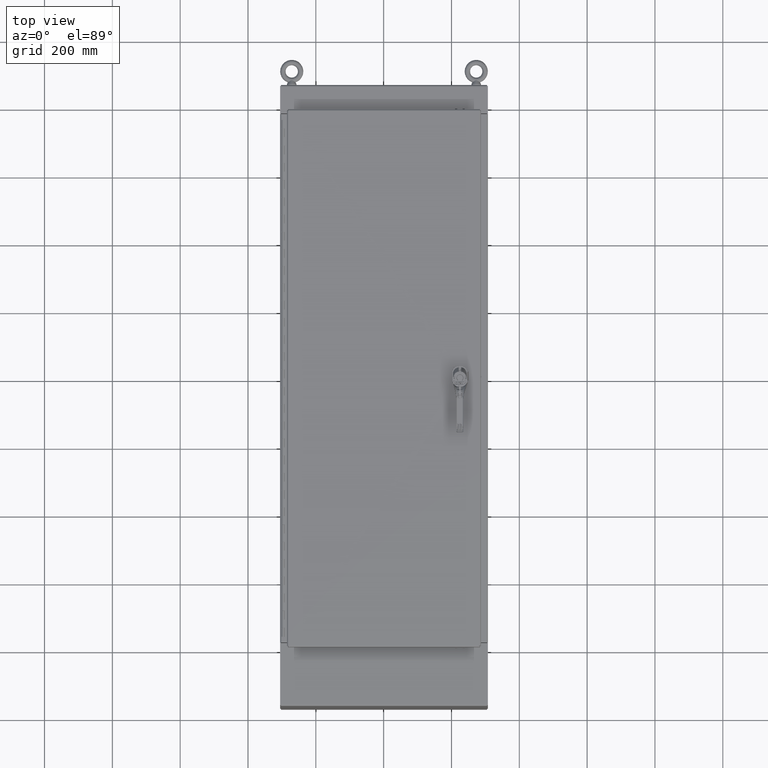
[diagram: clean part render]
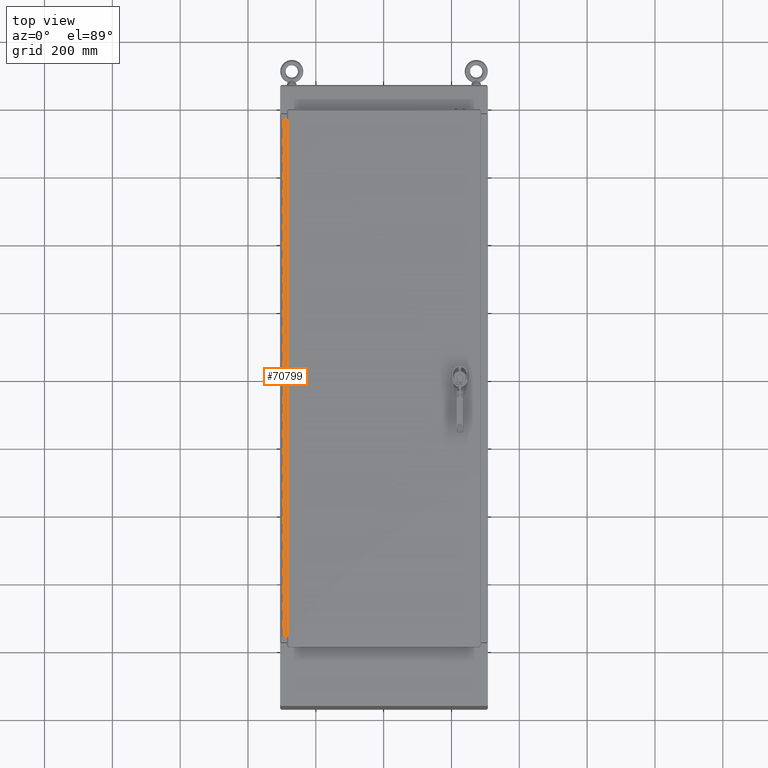
[diagram: same view with one face highlighted and labeled with its STEP entity id]
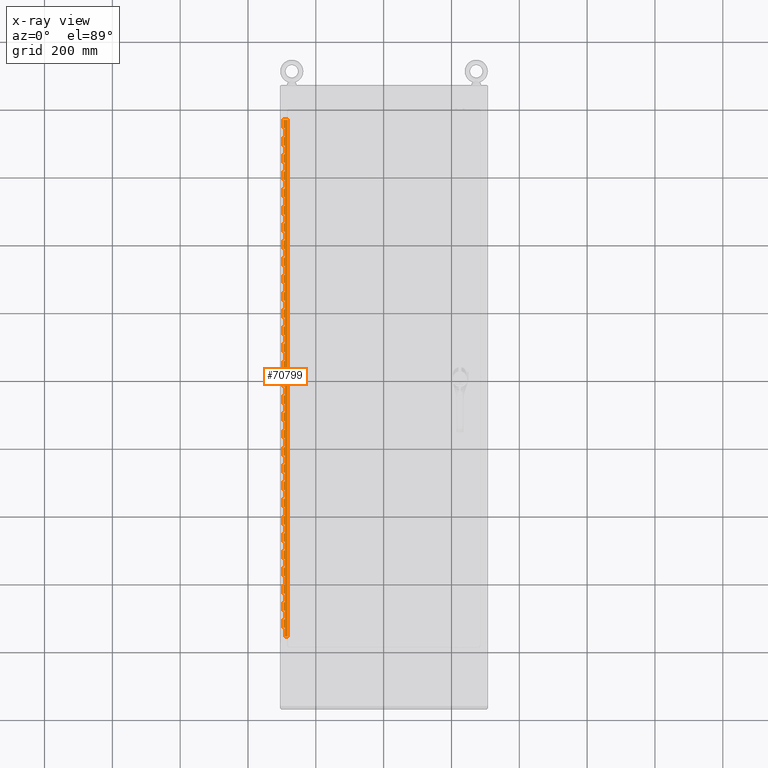
[diagram: x-ray of the same camera — body ghosted, the highlighted face saturated]
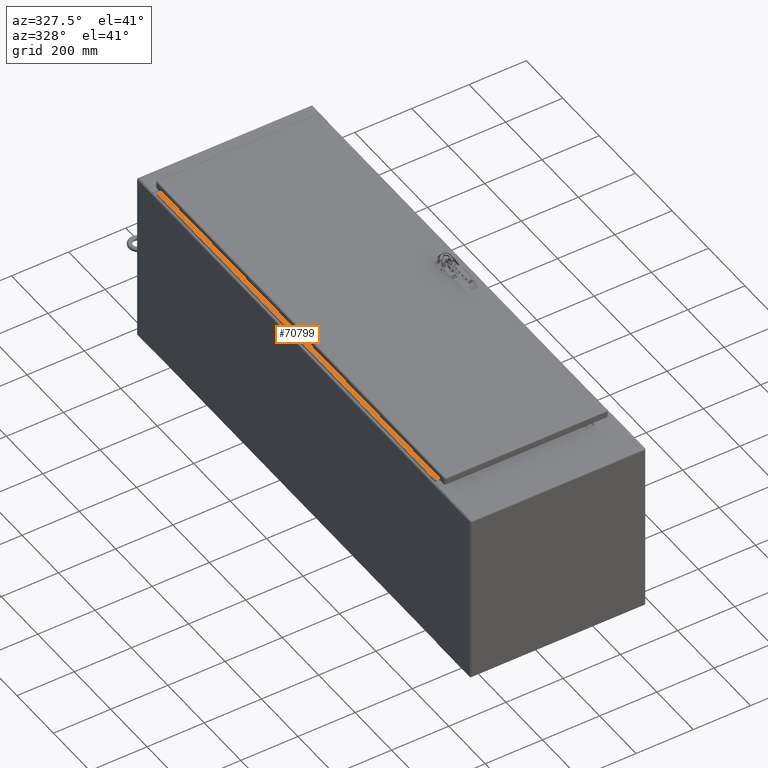
[diagram: same view with one face highlighted and labeled with its STEP entity id]
A machine part, top view. The second image highlights one B-rep face of the part: STEP entity #70799.
The next image is the same camera in x-ray: the body ghosted, the highlighted face saturated — about 0% of this face is hidden behind the body in this view.
A second angle (auxiliary view) of the same face is appended — the face is thin or edge-on in the first view.
In plain terms, the highlighted planar face has unit normal (0.0872, 0, 0.9962).
Its self-contained STEP definition (entity closure, byte-faithful):
#10197=PLANE('',#77788);
#12790=FACE_OUTER_BOUND('',#15876,.T.);
#15876=EDGE_LOOP('',(#62049,#62050,#62051,#62052,#62053,#62054,#62055,#62056,
#62057,#62058,#62059,#62060,#62061,#62062,#62063,#62064,#62065,#62066,#62067,
#62068,#62069,#62070,#62071,#62072,#62073,#62074,#62075,#62076,#62077,#62078,
#62079,#62080,#62081,#62082,#62083,#62084,#62085,#62086,#62087,#62088,#62089,
#62090,#62091,#62092,#62093,#62094,#62095,#62096,#62097,#62098,#62099,#62100,
#62101,#62102,#62103,#62104,#62105,#62106,#62107,#62108,#62109,#62110,#62111,
#62112,#62113,#62114,#62115,#62116,#62117,#62118,#62119,#62120,#62121,#62122,
#62123,#62124,#62125,#62126,#62127,#62128,#62129,#62130,#62131,#62132,#62133,
#62134,#62135,#62136,#62137,#62138,#62139,#62140,#62141,#62142,#62143,#62144,
#62145,#62146,#62147,#62148,#62149,#62150,#62151,#62152,#62153,#62154,#62155,
#62156,#62157,#62158,#62159,#62160,#62161,#62162,#62163,#62164,#62165,#62166,
#62167,#62168,#62169,#62170));
#24318=LINE('',#185659,#29484);
#24323=LINE('',#185671,#29489);
#24327=LINE('',#185682,#29493);
#24328=LINE('',#185688,#29494);
#24333=LINE('',#185700,#29499);
#24337=LINE('',#185711,#29503);
#24338=LINE('',#185717,#29504);
#24343=LINE('',#185729,#29509);
#24347=LINE('',#185740,#29513);
#24348=LINE('',#185746,#29514);
#24353=LINE('',#185758,#29519);
#24357=LINE('',#185769,#29523);
#24358=LINE('',#185775,#29524);
#24363=LINE('',#185787,#29529);
#24367=LINE('',#185798,#29533);
#24368=LINE('',#185804,#29534);
#24373=LINE('',#185816,#29539);
#24377=LINE('',#185827,#29543);
#24378=LINE('',#185833,#29544);
#24383=LINE('',#185845,#29549);
#24387=LINE('',#185856,#29553);
#24388=LINE('',#185862,#29554);
#24393=LINE('',#185874,#29559);
#24397=LINE('',#185885,#29563);
#24398=LINE('',#185891,#29564);
#24403=LINE('',#185903,#29569);
#24407=LINE('',#185914,#29573);
#24408=LINE('',#185920,#29574);
#24413=LINE('',#185932,#29579);
#24417=LINE('',#185943,#29583);
#24418=LINE('',#185949,#29584);
#24423=LINE('',#185961,#29589);
#24427=LINE('',#185972,#29593);
#24428=LINE('',#185978,#29594);
#24433=LINE('',#185990,#29599);
#24437=LINE('',#186001,#29603);
#24438=LINE('',#186007,#29604);
#24443=LINE('',#186019,#29609);
#24447=LINE('',#186030,#29613);
#24448=LINE('',#186036,#29614);
#24453=LINE('',#186048,#29619);
#24457=LINE('',#186059,#29623);
#24458=LINE('',#186065,#29624);
#24463=LINE('',#186077,#29629);
#24467=LINE('',#186088,#29633);
#24468=LINE('',#186094,#29634);
#24473=LINE('',#186106,#29639);
#24477=LINE('',#186117,#29643);
#24478=LINE('',#186123,#29644);
#24483=LINE('',#186135,#29649);
#24487=LINE('',#186146,#29653);
#24488=LINE('',#186152,#29654);
#24493=LINE('',#186164,#29659);
#24497=LINE('',#186175,#29663);
#24498=LINE('',#186181,#29664);
#24503=LINE('',#186193,#29669);
#24507=LINE('',#186204,#29673);
#24508=LINE('',#186210,#29674);
#24513=LINE('',#186222,#29679);
#24517=LINE('',#186233,#29683);
#24518=LINE('',#186239,#29684);
#24523=LINE('',#186251,#29689);
#24527=LINE('',#186262,#29693);
#24528=LINE('',#186268,#29694);
#24533=LINE('',#186280,#29699);
#24537=LINE('',#186291,#29703);
#24538=LINE('',#186297,#29704);
#24543=LINE('',#186309,#29709);
#24547=LINE('',#186320,#29713);
#24548=LINE('',#186326,#29714);
#24553=LINE('',#186338,#29719);
#24557=LINE('',#186349,#29723);
#24558=LINE('',#186355,#29724);
#24563=LINE('',#186367,#29729);
#24567=LINE('',#186378,#29733);
#24568=LINE('',#186384,#29734);
#24573=LINE('',#186396,#29739);
#24577=LINE('',#186407,#29743);
#24578=LINE('',#186413,#29744);
#24583=LINE('',#186425,#29749);
#24587=LINE('',#186436,#29753);
#24588=LINE('',#186442,#29754);
#24593=LINE('',#186454,#29759);
#24597=LINE('',#186465,#29763);
#24598=LINE('',#186471,#29764);
#24603=LINE('',#186483,#29769);
#24607=LINE('',#186494,#29773);
#24608=LINE('',#186496,#29774);
#24609=LINE('',#186497,#29775);
#24610=LINE('',#186498,#29776);
#24611=LINE('',#186499,#29777);
#24612=LINE('',#186500,#29778);
#24613=LINE('',#186501,#29779);
#24614=LINE('',#186502,#29780);
#24615=LINE('',#186503,#29781);
#24616=LINE('',#186504,#29782);
#24617=LINE('',#186505,#29783);
#24618=LINE('',#186506,#29784);
#24619=LINE('',#186507,#29785);
#24620=LINE('',#186508,#29786);
#24621=LINE('',#186509,#29787);
#24622=LINE('',#186510,#29788);
#24623=LINE('',#186511,#29789);
#24624=LINE('',#186512,#29790);
#24625=LINE('',#186513,#29791);
#24626=LINE('',#186514,#29792);
#24627=LINE('',#186515,#29793);
#24628=LINE('',#186516,#29794);
#24629=LINE('',#186517,#29795);
#24630=LINE('',#186518,#29796);
#24631=LINE('',#186519,#29797);
#24632=LINE('',#186520,#29798);
#24633=LINE('',#186521,#29799);
#24634=LINE('',#186522,#29800);
#24635=LINE('',#186523,#29801);
#24636=LINE('',#186525,#29802);
#24637=LINE('',#186527,#29803);
#24638=LINE('',#186529,#29804);
#24639=LINE('',#186531,#29805);
#24640=LINE('',#186533,#29806);
#24641=LINE('',#186535,#29807);
#24642=LINE('',#186536,#29808);
#29484=VECTOR('',#93729,0.393700787401575);
#29489=VECTOR('',#93738,0.393700787401575);
#29493=VECTOR('',#93748,0.393700787401575);
#29494=VECTOR('',#93753,0.393700787401575);
#29499=VECTOR('',#93762,0.393700787401575);
#29503=VECTOR('',#93772,0.393700787401575);
#29504=VECTOR('',#93777,0.393700787401575);
#29509=VECTOR('',#93786,0.393700787401575);
#29513=VECTOR('',#93796,0.393700787401575);
#29514=VECTOR('',#93801,0.393700787401575);
#29519=VECTOR('',#93810,0.393700787401575);
#29523=VECTOR('',#93820,0.393700787401575);
#29524=VECTOR('',#93825,0.393700787401575);
#29529=VECTOR('',#93834,0.393700787401575);
#29533=VECTOR('',#93844,0.393700787401575);
#29534=VECTOR('',#93849,0.393700787401575);
#29539=VECTOR('',#93858,0.393700787401575);
#29543=VECTOR('',#93868,0.393700787401575);
#29544=VECTOR('',#93873,0.393700787401575);
#29549=VECTOR('',#93882,0.393700787401575);
#29553=VECTOR('',#93892,0.393700787401575);
#29554=VECTOR('',#93897,0.393700787401575);
#29559=VECTOR('',#93906,0.393700787401575);
#29563=VECTOR('',#93916,0.393700787401575);
#29564=VECTOR('',#93921,0.393700787401575);
#29569=VECTOR('',#93930,0.393700787401575);
#29573=VECTOR('',#93940,0.393700787401575);
#29574=VECTOR('',#93945,0.393700787401575);
#29579=VECTOR('',#93954,0.393700787401575);
#29583=VECTOR('',#93964,0.393700787401575);
#29584=VECTOR('',#93969,0.393700787401575);
#29589=VECTOR('',#93978,0.393700787401575);
#29593=VECTOR('',#93988,0.393700787401575);
#29594=VECTOR('',#93993,0.393700787401575);
#29599=VECTOR('',#94002,0.393700787401575);
#29603=VECTOR('',#94012,0.393700787401575);
#29604=VECTOR('',#94017,0.393700787401575);
#29609=VECTOR('',#94026,0.393700787401575);
#29613=VECTOR('',#94036,0.393700787401575);
#29614=VECTOR('',#94041,0.393700787401575);
#29619=VECTOR('',#94050,0.393700787401575);
#29623=VECTOR('',#94060,0.393700787401575);
#29624=VECTOR('',#94065,0.393700787401575);
#29629=VECTOR('',#94074,0.393700787401575);
#29633=VECTOR('',#94084,0.393700787401575);
#29634=VECTOR('',#94089,0.393700787401575);
#29639=VECTOR('',#94098,0.393700787401575);
#29643=VECTOR('',#94108,0.393700787401575);
#29644=VECTOR('',#94113,0.393700787401575);
#29649=VECTOR('',#94122,0.393700787401575);
#29653=VECTOR('',#94132,0.393700787401575);
#29654=VECTOR('',#94137,0.393700787401575);
#29659=VECTOR('',#94146,0.393700787401575);
#29663=VECTOR('',#94156,0.393700787401575);
#29664=VECTOR('',#94161,0.393700787401575);
#29669=VECTOR('',#94170,0.393700787401575);
#29673=VECTOR('',#94180,0.393700787401575);
#29674=VECTOR('',#94185,0.393700787401575);
#29679=VECTOR('',#94194,0.393700787401575);
#29683=VECTOR('',#94204,0.393700787401575);
#29684=VECTOR('',#94209,0.393700787401575);
#29689=VECTOR('',#94218,0.393700787401575);
#29693=VECTOR('',#94228,0.393700787401575);
#29694=VECTOR('',#94233,0.393700787401575);
#29699=VECTOR('',#94242,0.393700787401575);
#29703=VECTOR('',#94252,0.393700787401575);
#29704=VECTOR('',#94257,0.393700787401575);
#29709=VECTOR('',#94266,0.393700787401575);
#29713=VECTOR('',#94276,0.393700787401575);
#29714=VECTOR('',#94281,0.393700787401575);
#29719=VECTOR('',#94290,0.393700787401575);
#29723=VECTOR('',#94300,0.393700787401575);
#29724=VECTOR('',#94305,0.393700787401575);
#29729=VECTOR('',#94314,0.393700787401575);
#29733=VECTOR('',#94324,0.393700787401575);
#29734=VECTOR('',#94329,0.393700787401575);
#29739=VECTOR('',#94338,0.393700787401575);
#29743=VECTOR('',#94348,0.393700787401575);
#29744=VECTOR('',#94353,0.393700787401575);
#29749=VECTOR('',#94362,0.393700787401575);
#29753=VECTOR('',#94372,0.393700787401575);
#29754=VECTOR('',#94377,0.393700787401575);
#29759=VECTOR('',#94386,0.393700787401575);
#29763=VECTOR('',#94396,0.393700787401575);
#29764=VECTOR('',#94401,0.393700787401575);
#29769=VECTOR('',#94410,0.393700787401575);
#29773=VECTOR('',#94420,0.393700787401575);
#29774=VECTOR('',#94423,0.393700787401575);
#29775=VECTOR('',#94424,0.393700787401575);
#29776=VECTOR('',#94425,0.393700787401575);
#29777=VECTOR('',#94426,0.393700787401575);
#29778=VECTOR('',#94427,0.393700787401575);
#29779=VECTOR('',#94428,0.393700787401575);
#29780=VECTOR('',#94429,0.393700787401575);
#29781=VECTOR('',#94430,0.393700787401575);
#29782=VECTOR('',#94431,0.393700787401575);
#29783=VECTOR('',#94432,0.393700787401575);
#29784=VECTOR('',#94433,0.393700787401575);
#29785=VECTOR('',#94434,0.393700787401575);
#29786=VECTOR('',#94435,0.393700787401575);
#29787=VECTOR('',#94436,0.393700787401575);
#29788=VECTOR('',#94437,0.393700787401575);
#29789=VECTOR('',#94438,0.393700787401575);
#29790=VECTOR('',#94439,0.393700787401575);
#29791=VECTOR('',#94440,0.393700787401575);
#29792=VECTOR('',#94441,0.393700787401575);
#29793=VECTOR('',#94442,0.393700787401575);
#29794=VECTOR('',#94443,0.393700787401575);
#29795=VECTOR('',#94444,0.393700787401575);
#29796=VECTOR('',#94445,0.393700787401575);
#29797=VECTOR('',#94446,0.393700787401575);
#29798=VECTOR('',#94447,0.393700787401575);
#29799=VECTOR('',#94448,0.393700787401575);
#29800=VECTOR('',#94449,0.393700787401575);
#29801=VECTOR('',#94450,0.393700787401575);
#29802=VECTOR('',#94451,0.393700787401575);
#29803=VECTOR('',#94452,0.393700787401575);
#29804=VECTOR('',#94453,0.393700787401575);
#29805=VECTOR('',#94454,0.393700787401575);
#29806=VECTOR('',#94455,0.393700787401575);
#29807=VECTOR('',#94456,0.393700787401575);
#29808=VECTOR('',#94457,0.393700787401575);
#38575=VERTEX_POINT('',#185655);
#38577=VERTEX_POINT('',#185658);
#38582=VERTEX_POINT('',#185670);
#38584=VERTEX_POINT('',#185675);
#38587=VERTEX_POINT('',#185684);
#38589=VERTEX_POINT('',#185687);
#38594=VERTEX_POINT('',#185699);
#38596=VERTEX_POINT('',#185704);
#38599=VERTEX_POINT('',#185713);
#38601=VERTEX_POINT('',#185716);
#38606=VERTEX_POINT('',#185728);
#38608=VERTEX_POINT('',#185733);
#38611=VERTEX_POINT('',#185742);
#38613=VERTEX_POINT('',#185745);
#38618=VERTEX_POINT('',#185757);
#38620=VERTEX_POINT('',#185762);
#38623=VERTEX_POINT('',#185771);
#38625=VERTEX_POINT('',#185774);
#38630=VERTEX_POINT('',#185786);
#38632=VERTEX_POINT('',#185791);
#38635=VERTEX_POINT('',#185800);
#38637=VERTEX_POINT('',#185803);
#38642=VERTEX_POINT('',#185815);
#38644=VERTEX_POINT('',#185820);
#38647=VERTEX_POINT('',#185829);
#38649=VERTEX_POINT('',#185832);
#38654=VERTEX_POINT('',#185844);
#38656=VERTEX_POINT('',#185849);
#38659=VERTEX_POINT('',#185858);
#38661=VERTEX_POINT('',#185861);
#38666=VERTEX_POINT('',#185873);
#38668=VERTEX_POINT('',#185878);
#38671=VERTEX_POINT('',#185887);
#38673=VERTEX_POINT('',#185890);
#38678=VERTEX_POINT('',#185902);
#38680=VERTEX_POINT('',#185907);
#38683=VERTEX_POINT('',#185916);
#38685=VERTEX_POINT('',#185919);
#38690=VERTEX_POINT('',#185931);
#38692=VERTEX_POINT('',#185936);
#38695=VERTEX_POINT('',#185945);
#38697=VERTEX_POINT('',#185948);
#38702=VERTEX_POINT('',#185960);
#38704=VERTEX_POINT('',#185965);
#38707=VERTEX_POINT('',#185974);
#38709=VERTEX_POINT('',#185977);
#38714=VERTEX_POINT('',#185989);
#38716=VERTEX_POINT('',#185994);
#38719=VERTEX_POINT('',#186003);
#38721=VERTEX_POINT('',#186006);
#38726=VERTEX_POINT('',#186018);
#38728=VERTEX_POINT('',#186023);
#38731=VERTEX_POINT('',#186032);
#38733=VERTEX_POINT('',#186035);
#38738=VERTEX_POINT('',#186047);
#38740=VERTEX_POINT('',#186052);
#38743=VERTEX_POINT('',#186061);
#38745=VERTEX_POINT('',#186064);
#38750=VERTEX_POINT('',#186076);
#38752=VERTEX_POINT('',#186081);
#38755=VERTEX_POINT('',#186090);
#38757=VERTEX_POINT('',#186093);
#38762=VERTEX_POINT('',#186105);
#38764=VERTEX_POINT('',#186110);
#38767=VERTEX_POINT('',#186119);
#38769=VERTEX_POINT('',#186122);
#38774=VERTEX_POINT('',#186134);
#38776=VERTEX_POINT('',#186139);
#38779=VERTEX_POINT('',#186148);
#38781=VERTEX_POINT('',#186151);
#38786=VERTEX_POINT('',#186163);
#38788=VERTEX_POINT('',#186168);
#38791=VERTEX_POINT('',#186177);
#38793=VERTEX_POINT('',#186180);
#38798=VERTEX_POINT('',#186192);
#38800=VERTEX_POINT('',#186197);
#38803=VERTEX_POINT('',#186206);
#38805=VERTEX_POINT('',#186209);
#38810=VERTEX_POINT('',#186221);
#38812=VERTEX_POINT('',#186226);
#38815=VERTEX_POINT('',#186235);
#38817=VERTEX_POINT('',#186238);
#38822=VERTEX_POINT('',#186250);
#38824=VERTEX_POINT('',#186255);
#38827=VERTEX_POINT('',#186264);
#38829=VERTEX_POINT('',#186267);
#38834=VERTEX_POINT('',#186279);
#38836=VERTEX_POINT('',#186284);
#38839=VERTEX_POINT('',#186293);
#38841=VERTEX_POINT('',#186296);
#38846=VERTEX_POINT('',#186308);
#38848=VERTEX_POINT('',#186313);
#38851=VERTEX_POINT('',#186322);
#38853=VERTEX_POINT('',#186325);
#38858=VERTEX_POINT('',#186337);
#38860=VERTEX_POINT('',#186342);
#38863=VERTEX_POINT('',#186351);
#38865=VERTEX_POINT('',#186354);
#38870=VERTEX_POINT('',#186366);
#38872=VERTEX_POINT('',#186371);
#38875=VERTEX_POINT('',#186380);
#38877=VERTEX_POINT('',#186383);
#38882=VERTEX_POINT('',#186395);
#38884=VERTEX_POINT('',#186400);
#38887=VERTEX_POINT('',#186409);
#38889=VERTEX_POINT('',#186412);
#38894=VERTEX_POINT('',#186424);
#38896=VERTEX_POINT('',#186429);
#38899=VERTEX_POINT('',#186438);
#38901=VERTEX_POINT('',#186441);
#38906=VERTEX_POINT('',#186453);
#38908=VERTEX_POINT('',#186458);
#38911=VERTEX_POINT('',#186467);
#38913=VERTEX_POINT('',#186470);
#38918=VERTEX_POINT('',#186482);
#38920=VERTEX_POINT('',#186487);
#38923=VERTEX_POINT('',#186524);
#38924=VERTEX_POINT('',#186526);
#38925=VERTEX_POINT('',#186528);
#38926=VERTEX_POINT('',#186530);
#38927=VERTEX_POINT('',#186532);
#38928=VERTEX_POINT('',#186534);
#48659=EDGE_CURVE('',#38577,#38575,#24318,.T.);
#48665=EDGE_CURVE('',#38582,#38577,#24323,.T.);
#48671=EDGE_CURVE('',#38584,#38582,#24327,.T.);
#48673=EDGE_CURVE('',#38589,#38587,#24328,.T.);
#48679=EDGE_CURVE('',#38594,#38589,#24333,.T.);
#48685=EDGE_CURVE('',#38596,#38594,#24337,.T.);
#48687=EDGE_CURVE('',#38601,#38599,#24338,.T.);
#48693=EDGE_CURVE('',#38606,#38601,#24343,.T.);
#48699=EDGE_CURVE('',#38608,#38606,#24347,.T.);
#48701=EDGE_CURVE('',#38613,#38611,#24348,.T.);
#48707=EDGE_CURVE('',#38618,#38613,#24353,.T.);
#48713=EDGE_CURVE('',#38620,#38618,#24357,.T.);
#48715=EDGE_CURVE('',#38625,#38623,#24358,.T.);
#48721=EDGE_CURVE('',#38630,#38625,#24363,.T.);
#48727=EDGE_CURVE('',#38632,#38630,#24367,.T.);
#48729=EDGE_CURVE('',#38637,#38635,#24368,.T.);
#48735=EDGE_CURVE('',#38642,#38637,#24373,.T.);
#48741=EDGE_CURVE('',#38644,#38642,#24377,.T.);
#48743=EDGE_CURVE('',#38649,#38647,#24378,.T.);
#48749=EDGE_CURVE('',#38654,#38649,#24383,.T.);
#48755=EDGE_CURVE('',#38656,#38654,#24387,.T.);
#48757=EDGE_CURVE('',#38661,#38659,#24388,.T.);
#48763=EDGE_CURVE('',#38666,#38661,#24393,.T.);
#48769=EDGE_CURVE('',#38668,#38666,#24397,.T.);
#48771=EDGE_CURVE('',#38673,#38671,#24398,.T.);
#48777=EDGE_CURVE('',#38678,#38673,#24403,.T.);
#48783=EDGE_CURVE('',#38680,#38678,#24407,.T.);
#48785=EDGE_CURVE('',#38685,#38683,#24408,.T.);
#48791=EDGE_CURVE('',#38690,#38685,#24413,.T.);
#48797=EDGE_CURVE('',#38692,#38690,#24417,.T.);
#48799=EDGE_CURVE('',#38697,#38695,#24418,.T.);
#48805=EDGE_CURVE('',#38702,#38697,#24423,.T.);
#48811=EDGE_CURVE('',#38704,#38702,#24427,.T.);
#48813=EDGE_CURVE('',#38709,#38707,#24428,.T.);
#48819=EDGE_CURVE('',#38714,#38709,#24433,.T.);
#48825=EDGE_CURVE('',#38716,#38714,#24437,.T.);
#48827=EDGE_CURVE('',#38721,#38719,#24438,.T.);
#48833=EDGE_CURVE('',#38726,#38721,#24443,.T.);
#48839=EDGE_CURVE('',#38728,#38726,#24447,.T.);
#48841=EDGE_CURVE('',#38733,#38731,#24448,.T.);
#48847=EDGE_CURVE('',#38738,#38733,#24453,.T.);
#48853=EDGE_CURVE('',#38740,#38738,#24457,.T.);
#48855=EDGE_CURVE('',#38745,#38743,#24458,.T.);
#48861=EDGE_CURVE('',#38750,#38745,#24463,.T.);
#48867=EDGE_CURVE('',#38752,#38750,#24467,.T.);
#48869=EDGE_CURVE('',#38757,#38755,#24468,.T.);
#48875=EDGE_CURVE('',#38762,#38757,#24473,.T.);
#48881=EDGE_CURVE('',#38764,#38762,#24477,.T.);
#48883=EDGE_CURVE('',#38769,#38767,#24478,.T.);
#48889=EDGE_CURVE('',#38774,#38769,#24483,.T.);
#48895=EDGE_CURVE('',#38776,#38774,#24487,.T.);
#48897=EDGE_CURVE('',#38781,#38779,#24488,.T.);
#48903=EDGE_CURVE('',#38786,#38781,#24493,.T.);
#48909=EDGE_CURVE('',#38788,#38786,#24497,.T.);
#48911=EDGE_CURVE('',#38793,#38791,#24498,.T.);
#48917=EDGE_CURVE('',#38798,#38793,#24503,.T.);
#48923=EDGE_CURVE('',#38800,#38798,#24507,.T.);
#48925=EDGE_CURVE('',#38805,#38803,#24508,.T.);
#48931=EDGE_CURVE('',#38810,#38805,#24513,.T.);
#48937=EDGE_CURVE('',#38812,#38810,#24517,.T.);
#48939=EDGE_CURVE('',#38817,#38815,#24518,.T.);
#48945=EDGE_CURVE('',#38822,#38817,#24523,.T.);
#48951=EDGE_CURVE('',#38824,#38822,#24527,.T.);
#48953=EDGE_CURVE('',#38829,#38827,#24528,.T.);
#48959=EDGE_CURVE('',#38834,#38829,#24533,.T.);
#48965=EDGE_CURVE('',#38836,#38834,#24537,.T.);
#48967=EDGE_CURVE('',#38841,#38839,#24538,.T.);
#48973=EDGE_CURVE('',#38846,#38841,#24543,.T.);
#48979=EDGE_CURVE('',#38848,#38846,#24547,.T.);
#48981=EDGE_CURVE('',#38853,#38851,#24548,.T.);
#48987=EDGE_CURVE('',#38858,#38853,#24553,.T.);
#48993=EDGE_CURVE('',#38860,#38858,#24557,.T.);
#48995=EDGE_CURVE('',#38865,#38863,#24558,.T.);
#49001=EDGE_CURVE('',#38870,#38865,#24563,.T.);
#49007=EDGE_CURVE('',#38872,#38870,#24567,.T.);
#49009=EDGE_CURVE('',#38877,#38875,#24568,.T.);
#49015=EDGE_CURVE('',#38882,#38877,#24573,.T.);
#49021=EDGE_CURVE('',#38884,#38882,#24577,.T.);
#49023=EDGE_CURVE('',#38889,#38887,#24578,.T.);
#49029=EDGE_CURVE('',#38894,#38889,#24583,.T.);
#49035=EDGE_CURVE('',#38896,#38894,#24587,.T.);
#49037=EDGE_CURVE('',#38901,#38899,#24588,.T.);
#49043=EDGE_CURVE('',#38906,#38901,#24593,.T.);
#49049=EDGE_CURVE('',#38908,#38906,#24597,.T.);
#49051=EDGE_CURVE('',#38913,#38911,#24598,.T.);
#49057=EDGE_CURVE('',#38918,#38913,#24603,.T.);
#49063=EDGE_CURVE('',#38920,#38918,#24607,.T.);
#49064=EDGE_CURVE('',#38575,#38596,#24608,.T.);
#49065=EDGE_CURVE('',#38587,#38608,#24609,.T.);
#49066=EDGE_CURVE('',#38599,#38620,#24610,.T.);
#49067=EDGE_CURVE('',#38611,#38632,#24611,.T.);
#49068=EDGE_CURVE('',#38623,#38644,#24612,.T.);
#49069=EDGE_CURVE('',#38635,#38656,#24613,.T.);
#49070=EDGE_CURVE('',#38647,#38668,#24614,.T.);
#49071=EDGE_CURVE('',#38659,#38680,#24615,.T.);
#49072=EDGE_CURVE('',#38671,#38692,#24616,.T.);
#49073=EDGE_CURVE('',#38683,#38704,#24617,.T.);
#49074=EDGE_CURVE('',#38695,#38716,#24618,.T.);
#49075=EDGE_CURVE('',#38707,#38728,#24619,.T.);
#49076=EDGE_CURVE('',#38719,#38740,#24620,.T.);
#49077=EDGE_CURVE('',#38731,#38752,#24621,.T.);
#49078=EDGE_CURVE('',#38743,#38764,#24622,.T.);
#49079=EDGE_CURVE('',#38755,#38776,#24623,.T.);
#49080=EDGE_CURVE('',#38767,#38788,#24624,.T.);
#49081=EDGE_CURVE('',#38779,#38800,#24625,.T.);
#49082=EDGE_CURVE('',#38791,#38812,#24626,.T.);
#49083=EDGE_CURVE('',#38803,#38824,#24627,.T.);
#49084=EDGE_CURVE('',#38815,#38836,#24628,.T.);
#49085=EDGE_CURVE('',#38827,#38848,#24629,.T.);
#49086=EDGE_CURVE('',#38839,#38860,#24630,.T.);
#49087=EDGE_CURVE('',#38851,#38872,#24631,.T.);
#49088=EDGE_CURVE('',#38863,#38884,#24632,.T.);
#49089=EDGE_CURVE('',#38875,#38896,#24633,.T.);
#49090=EDGE_CURVE('',#38887,#38908,#24634,.T.);
#49091=EDGE_CURVE('',#38899,#38920,#24635,.T.);
#49092=EDGE_CURVE('',#38911,#38923,#24636,.T.);
#49093=EDGE_CURVE('',#38923,#38924,#24637,.T.);
#49094=EDGE_CURVE('',#38924,#38925,#24638,.T.);
#49095=EDGE_CURVE('',#38925,#38926,#24639,.T.);
#49096=EDGE_CURVE('',#38927,#38926,#24640,.T.);
#49097=EDGE_CURVE('',#38927,#38928,#24641,.T.);
#49098=EDGE_CURVE('',#38928,#38584,#24642,.T.);
#62049=ORIENTED_EDGE('',*,*,#48671,.T.);
#62050=ORIENTED_EDGE('',*,*,#48665,.T.);
#62051=ORIENTED_EDGE('',*,*,#48659,.T.);
#62052=ORIENTED_EDGE('',*,*,#49064,.T.);
#62053=ORIENTED_EDGE('',*,*,#48685,.T.);
#62054=ORIENTED_EDGE('',*,*,#48679,.T.);
#62055=ORIENTED_EDGE('',*,*,#48673,.T.);
#62056=ORIENTED_EDGE('',*,*,#49065,.T.);
#62057=ORIENTED_EDGE('',*,*,#48699,.T.);
#62058=ORIENTED_EDGE('',*,*,#48693,.T.);
#62059=ORIENTED_EDGE('',*,*,#48687,.T.);
#62060=ORIENTED_EDGE('',*,*,#49066,.T.);
#62061=ORIENTED_EDGE('',*,*,#48713,.T.);
#62062=ORIENTED_EDGE('',*,*,#48707,.T.);
#62063=ORIENTED_EDGE('',*,*,#48701,.T.);
#62064=ORIENTED_EDGE('',*,*,#49067,.T.);
#62065=ORIENTED_EDGE('',*,*,#48727,.T.);
#62066=ORIENTED_EDGE('',*,*,#48721,.T.);
#62067=ORIENTED_EDGE('',*,*,#48715,.T.);
#62068=ORIENTED_EDGE('',*,*,#49068,.T.);
#62069=ORIENTED_EDGE('',*,*,#48741,.T.);
#62070=ORIENTED_EDGE('',*,*,#48735,.T.);
#62071=ORIENTED_EDGE('',*,*,#48729,.T.);
#62072=ORIENTED_EDGE('',*,*,#49069,.T.);
#62073=ORIENTED_EDGE('',*,*,#48755,.T.);
#62074=ORIENTED_EDGE('',*,*,#48749,.T.);
#62075=ORIENTED_EDGE('',*,*,#48743,.T.);
#62076=ORIENTED_EDGE('',*,*,#49070,.T.);
#62077=ORIENTED_EDGE('',*,*,#48769,.T.);
#62078=ORIENTED_EDGE('',*,*,#48763,.T.);
#62079=ORIENTED_EDGE('',*,*,#48757,.T.);
#62080=ORIENTED_EDGE('',*,*,#49071,.T.);
#62081=ORIENTED_EDGE('',*,*,#48783,.T.);
#62082=ORIENTED_EDGE('',*,*,#48777,.T.);
#62083=ORIENTED_EDGE('',*,*,#48771,.T.);
#62084=ORIENTED_EDGE('',*,*,#49072,.T.);
#62085=ORIENTED_EDGE('',*,*,#48797,.T.);
#62086=ORIENTED_EDGE('',*,*,#48791,.T.);
#62087=ORIENTED_EDGE('',*,*,#48785,.T.);
#62088=ORIENTED_EDGE('',*,*,#49073,.T.);
#62089=ORIENTED_EDGE('',*,*,#48811,.T.);
#62090=ORIENTED_EDGE('',*,*,#48805,.T.);
#62091=ORIENTED_EDGE('',*,*,#48799,.T.);
#62092=ORIENTED_EDGE('',*,*,#49074,.T.);
#62093=ORIENTED_EDGE('',*,*,#48825,.T.);
#62094=ORIENTED_EDGE('',*,*,#48819,.T.);
#62095=ORIENTED_EDGE('',*,*,#48813,.T.);
#62096=ORIENTED_EDGE('',*,*,#49075,.T.);
#62097=ORIENTED_EDGE('',*,*,#48839,.T.);
#62098=ORIENTED_EDGE('',*,*,#48833,.T.);
#62099=ORIENTED_EDGE('',*,*,#48827,.T.);
#62100=ORIENTED_EDGE('',*,*,#49076,.T.);
#62101=ORIENTED_EDGE('',*,*,#48853,.T.);
#62102=ORIENTED_EDGE('',*,*,#48847,.T.);
#62103=ORIENTED_EDGE('',*,*,#48841,.T.);
#62104=ORIENTED_EDGE('',*,*,#49077,.T.);
#62105=ORIENTED_EDGE('',*,*,#48867,.T.);
#62106=ORIENTED_EDGE('',*,*,#48861,.T.);
#62107=ORIENTED_EDGE('',*,*,#48855,.T.);
#62108=ORIENTED_EDGE('',*,*,#49078,.T.);
#62109=ORIENTED_EDGE('',*,*,#48881,.T.);
#62110=ORIENTED_EDGE('',*,*,#48875,.T.);
#62111=ORIENTED_EDGE('',*,*,#48869,.T.);
#62112=ORIENTED_EDGE('',*,*,#49079,.T.);
#62113=ORIENTED_EDGE('',*,*,#48895,.T.);
#62114=ORIENTED_EDGE('',*,*,#48889,.T.);
#62115=ORIENTED_EDGE('',*,*,#48883,.T.);
#62116=ORIENTED_EDGE('',*,*,#49080,.T.);
#62117=ORIENTED_EDGE('',*,*,#48909,.T.);
#62118=ORIENTED_EDGE('',*,*,#48903,.T.);
#62119=ORIENTED_EDGE('',*,*,#48897,.T.);
#62120=ORIENTED_EDGE('',*,*,#49081,.T.);
#62121=ORIENTED_EDGE('',*,*,#48923,.T.);
#62122=ORIENTED_EDGE('',*,*,#48917,.T.);
#62123=ORIENTED_EDGE('',*,*,#48911,.T.);
#62124=ORIENTED_EDGE('',*,*,#49082,.T.);
#62125=ORIENTED_EDGE('',*,*,#48937,.T.);
#62126=ORIENTED_EDGE('',*,*,#48931,.T.);
#62127=ORIENTED_EDGE('',*,*,#48925,.T.);
#62128=ORIENTED_EDGE('',*,*,#49083,.T.);
#62129=ORIENTED_EDGE('',*,*,#48951,.T.);
#62130=ORIENTED_EDGE('',*,*,#48945,.T.);
#62131=ORIENTED_EDGE('',*,*,#48939,.T.);
#62132=ORIENTED_EDGE('',*,*,#49084,.T.);
#62133=ORIENTED_EDGE('',*,*,#48965,.T.);
#62134=ORIENTED_EDGE('',*,*,#48959,.T.);
#62135=ORIENTED_EDGE('',*,*,#48953,.T.);
#62136=ORIENTED_EDGE('',*,*,#49085,.T.);
#62137=ORIENTED_EDGE('',*,*,#48979,.T.);
#62138=ORIENTED_EDGE('',*,*,#48973,.T.);
#62139=ORIENTED_EDGE('',*,*,#48967,.T.);
#62140=ORIENTED_EDGE('',*,*,#49086,.T.);
#62141=ORIENTED_EDGE('',*,*,#48993,.T.);
#62142=ORIENTED_EDGE('',*,*,#48987,.T.);
#62143=ORIENTED_EDGE('',*,*,#48981,.T.);
#62144=ORIENTED_EDGE('',*,*,#49087,.T.);
#62145=ORIENTED_EDGE('',*,*,#49007,.T.);
#62146=ORIENTED_EDGE('',*,*,#49001,.T.);
#62147=ORIENTED_EDGE('',*,*,#48995,.T.);
#62148=ORIENTED_EDGE('',*,*,#49088,.T.);
#62149=ORIENTED_EDGE('',*,*,#49021,.T.);
#62150=ORIENTED_EDGE('',*,*,#49015,.T.);
#62151=ORIENTED_EDGE('',*,*,#49009,.T.);
#62152=ORIENTED_EDGE('',*,*,#49089,.T.);
#62153=ORIENTED_EDGE('',*,*,#49035,.T.);
#62154=ORIENTED_EDGE('',*,*,#49029,.T.);
#62155=ORIENTED_EDGE('',*,*,#49023,.T.);
#62156=ORIENTED_EDGE('',*,*,#49090,.T.);
#62157=ORIENTED_EDGE('',*,*,#49049,.T.);
#62158=ORIENTED_EDGE('',*,*,#49043,.T.);
#62159=ORIENTED_EDGE('',*,*,#49037,.T.);
#62160=ORIENTED_EDGE('',*,*,#49091,.T.);
#62161=ORIENTED_EDGE('',*,*,#49063,.T.);
#62162=ORIENTED_EDGE('',*,*,#49057,.T.);
#62163=ORIENTED_EDGE('',*,*,#49051,.T.);
#62164=ORIENTED_EDGE('',*,*,#49092,.T.);
#62165=ORIENTED_EDGE('',*,*,#49093,.T.);
#62166=ORIENTED_EDGE('',*,*,#49094,.T.);
#62167=ORIENTED_EDGE('',*,*,#49095,.T.);
#62168=ORIENTED_EDGE('',*,*,#49096,.F.);
#62169=ORIENTED_EDGE('',*,*,#49097,.T.);
#62170=ORIENTED_EDGE('',*,*,#49098,.T.);
#70799=ADVANCED_FACE('',(#12790),#10197,.T.);
#77788=AXIS2_PLACEMENT_3D('',#186495,#94421,#94422);
#93729=DIRECTION('',(1.,1.57313624040339E-16,-2.5910215143748E-29));
#93738=DIRECTION('',(0.,0.,1.));
#93748=DIRECTION('',(-1.,-1.57313624040339E-16,-2.36571529573352E-29));
#93753=DIRECTION('',(1.,1.57313624040339E-16,-2.5910215143748E-29));
#93762=DIRECTION('',(0.,0.,1.));
#93772=DIRECTION('',(-1.,-1.57313624040339E-16,-2.36571529573352E-29));
#93777=DIRECTION('',(1.,1.57313624040339E-16,-2.5910215143748E-29));
#93786=DIRECTION('',(0.,0.,1.));
#93796=DIRECTION('',(-1.,-1.57313624040339E-16,-2.36571529573352E-29));
#93801=DIRECTION('',(1.,1.57313624040339E-16,-2.5910215143748E-29));
#93810=DIRECTION('',(0.,0.,1.));
#93820=DIRECTION('',(-1.,-1.57313624040339E-16,-2.36571529573352E-29));
#93825=DIRECTION('',(1.,1.57313624040339E-16,-2.5910215143748E-29));
#93834=DIRECTION('',(0.,0.,1.));
#93844=DIRECTION('',(-1.,-1.57313624040339E-16,-2.36571529573352E-29));
#93849=DIRECTION('',(1.,1.57313624040339E-16,-2.5910215143748E-29));
#93858=DIRECTION('',(0.,0.,1.));
#93868=DIRECTION('',(-1.,-1.57313624040339E-16,-2.36571529573352E-29));
#93873=DIRECTION('',(1.,1.57313624040339E-16,-2.5910215143748E-29));
#93882=DIRECTION('',(0.,0.,1.));
#93892=DIRECTION('',(-1.,-1.57313624040339E-16,-2.36571529573352E-29));
#93897=DIRECTION('',(1.,1.57313624040339E-16,-2.5910215143748E-29));
#93906=DIRECTION('',(0.,0.,1.));
#93916=DIRECTION('',(-1.,-1.57313624040339E-16,-2.36571529573352E-29));
#93921=DIRECTION('',(1.,1.57313624040339E-16,-2.5910215143748E-29));
#93930=DIRECTION('',(0.,0.,1.));
#93940=DIRECTION('',(-1.,-1.57313624040339E-16,-2.36571529573352E-29));
#93945=DIRECTION('',(1.,1.57313624040339E-16,-2.5910215143748E-29));
#93954=DIRECTION('',(0.,0.,1.));
#93964=DIRECTION('',(-1.,-1.57313624040339E-16,-2.36571529573352E-29));
#93969=DIRECTION('',(1.,1.57313624040339E-16,-2.5910215143748E-29));
#93978=DIRECTION('',(0.,0.,1.));
#93988=DIRECTION('',(-1.,-1.57313624040339E-16,-2.36571529573352E-29));
#93993=DIRECTION('',(1.,1.57313624040339E-16,-2.5910215143748E-29));
#94002=DIRECTION('',(0.,0.,1.));
#94012=DIRECTION('',(-1.,-1.57313624040339E-16,-2.36571529573352E-29));
#94017=DIRECTION('',(1.,1.57313624040339E-16,-2.5910215143748E-29));
#94026=DIRECTION('',(0.,0.,1.));
#94036=DIRECTION('',(-1.,-1.57313624040339E-16,-2.36571529573352E-29));
#94041=DIRECTION('',(1.,1.57313624040339E-16,-2.5910215143748E-29));
#94050=DIRECTION('',(0.,0.,1.));
#94060=DIRECTION('',(-1.,-1.57313624040339E-16,-2.36571529573352E-29));
#94065=DIRECTION('',(1.,1.57313624040339E-16,-2.5910215143748E-29));
#94074=DIRECTION('',(0.,0.,1.));
#94084=DIRECTION('',(-1.,-1.57313624040339E-16,-2.36571529573352E-29));
#94089=DIRECTION('',(1.,1.57313624040339E-16,-2.5910215143748E-29));
#94098=DIRECTION('',(0.,0.,1.));
#94108=DIRECTION('',(-1.,-1.57313624040339E-16,-2.36571529573352E-29));
#94113=DIRECTION('',(1.,1.57313624040339E-16,-2.5910215143748E-29));
#94122=DIRECTION('',(0.,0.,1.));
#94132=DIRECTION('',(-1.,-1.57313624040339E-16,-2.36571529573352E-29));
#94137=DIRECTION('',(1.,1.57313624040339E-16,-2.5910215143748E-29));
#94146=DIRECTION('',(0.,0.,1.));
#94156=DIRECTION('',(-1.,-1.57313624040339E-16,-2.36571529573352E-29));
#94161=DIRECTION('',(1.,1.57313624040339E-16,-2.5910215143748E-29));
#94170=DIRECTION('',(0.,0.,1.));
#94180=DIRECTION('',(-1.,-1.57313624040339E-16,-2.36571529573352E-29));
#94185=DIRECTION('',(1.,1.57313624040339E-16,-2.5910215143748E-29));
#94194=DIRECTION('',(0.,0.,1.));
#94204=DIRECTION('',(-1.,-1.57313624040339E-16,-2.36571529573352E-29));
#94209=DIRECTION('',(1.,1.57313624040339E-16,-2.5910215143748E-29));
#94218=DIRECTION('',(0.,0.,1.));
#94228=DIRECTION('',(-1.,-1.57313624040339E-16,-2.36571529573352E-29));
#94233=DIRECTION('',(1.,1.57313624040339E-16,-2.5910215143748E-29));
#94242=DIRECTION('',(0.,0.,1.));
#94252=DIRECTION('',(-1.,-1.57313624040339E-16,-2.36571529573352E-29));
#94257=DIRECTION('',(1.,1.57313624040339E-16,-2.5910215143748E-29));
#94266=DIRECTION('',(0.,0.,1.));
#94276=DIRECTION('',(-1.,-1.57313624040339E-16,-2.36571529573352E-29));
#94281=DIRECTION('',(1.,1.57313624040339E-16,-2.5910215143748E-29));
#94290=DIRECTION('',(0.,0.,1.));
#94300=DIRECTION('',(-1.,-1.57313624040339E-16,-2.36571529573352E-29));
#94305=DIRECTION('',(1.,1.57313624040339E-16,-2.5910215143748E-29));
#94314=DIRECTION('',(0.,0.,1.));
#94324=DIRECTION('',(-1.,-1.57313624040339E-16,-2.36571529573352E-29));
#94329=DIRECTION('',(1.,1.57313624040339E-16,-2.5910215143748E-29));
#94338=DIRECTION('',(0.,0.,1.));
#94348=DIRECTION('',(-1.,-1.57313624040339E-16,-2.36571529573352E-29));
#94353=DIRECTION('',(1.,1.57313624040339E-16,-2.5910215143748E-29));
#94362=DIRECTION('',(0.,0.,1.));
#94372=DIRECTION('',(-1.,-1.57313624040339E-16,-2.36571529573352E-29));
#94377=DIRECTION('',(1.,1.57313624040339E-16,-2.5910215143748E-29));
#94386=DIRECTION('',(0.,0.,1.));
#94396=DIRECTION('',(-1.,-1.57313624040339E-16,-2.36571529573352E-29));
#94401=DIRECTION('',(1.,1.57313624040339E-16,-2.5910215143748E-29));
#94410=DIRECTION('',(0.,0.,1.));
#94420=DIRECTION('',(-1.,-1.57313624040339E-16,-2.36571529573352E-29));
#94421=DIRECTION('center_axis',(1.57313624040339E-16,-1.,0.));
#94422=DIRECTION('ref_axis',(0.,0.,-1.));
#94423=DIRECTION('',(0.,0.,1.));
#94424=DIRECTION('',(0.,0.,1.));
#94425=DIRECTION('',(0.,0.,1.));
#94426=DIRECTION('',(0.,0.,1.));
#94427=DIRECTION('',(0.,0.,1.));
#94428=DIRECTION('',(0.,0.,1.));
#94429=DIRECTION('',(0.,0.,1.));
#94430=DIRECTION('',(0.,0.,1.));
#94431=DIRECTION('',(0.,0.,1.));
#94432=DIRECTION('',(0.,0.,1.));
#94433=DIRECTION('',(0.,0.,1.));
#94434=DIRECTION('',(0.,0.,1.));
#94435=DIRECTION('',(0.,0.,1.));
#94436=DIRECTION('',(0.,0.,1.));
#94437=DIRECTION('',(0.,0.,1.));
#94438=DIRECTION('',(0.,0.,1.));
#94439=DIRECTION('',(0.,0.,1.));
#94440=DIRECTION('',(0.,0.,1.));
#94441=DIRECTION('',(0.,0.,1.));
#94442=DIRECTION('',(0.,0.,1.));
#94443=DIRECTION('',(0.,0.,1.));
#94444=DIRECTION('',(0.,0.,1.));
#94445=DIRECTION('',(0.,0.,1.));
#94446=DIRECTION('',(0.,0.,1.));
#94447=DIRECTION('',(0.,0.,1.));
#94448=DIRECTION('',(0.,0.,1.));
#94449=DIRECTION('',(0.,0.,1.));
#94450=DIRECTION('',(0.,0.,1.));
#94451=DIRECTION('',(0.,0.,1.));
#94452=DIRECTION('',(-1.,-1.57313624040339E-16,-2.36571529573352E-29));
#94453=DIRECTION('',(0.,0.,1.));
#94454=DIRECTION('',(-1.,-1.57313624040339E-16,0.));
#94455=DIRECTION('',(0.,0.,1.));
#94456=DIRECTION('',(1.,1.57313624040339E-16,0.));
#94457=DIRECTION('',(0.,0.,1.));
#185655=CARTESIAN_POINT('',(0.,-0.16275,2.00000000000001));
#185658=CARTESIAN_POINT('',(-0.18,-0.16275,2.00000000000001));
#185659=CARTESIAN_POINT('',(6.6052870563906E-18,-0.16275,2.00000000000002));
#185670=CARTESIAN_POINT('',(-0.18,-0.16275,0.98000000000002));
#185671=CARTESIAN_POINT('',(-0.18,-0.16275,1.));
#185675=CARTESIAN_POINT('',(0.,-0.16275,0.980000000000009));
#185682=CARTESIAN_POINT('',(6.60528705635309E-18,-0.16275,0.98000000000002));
#185684=CARTESIAN_POINT('',(0.,-0.16275,4.));
#185687=CARTESIAN_POINT('',(-0.18,-0.16275,4.));
#185688=CARTESIAN_POINT('',(6.26735679775047E-18,-0.16275,4.00000000000001));
#185699=CARTESIAN_POINT('',(-0.18,-0.16275,2.98000000000001));
#185700=CARTESIAN_POINT('',(-0.18,-0.16275,2.));
#185704=CARTESIAN_POINT('',(0.,-0.16275,2.98));
#185711=CARTESIAN_POINT('',(6.2673567976634E-18,-0.16275,2.98000000000001));
#185713=CARTESIAN_POINT('',(0.,-0.16275,6.00000000000001));
#185716=CARTESIAN_POINT('',(-0.18,-0.16275,6.00000000000001));
#185717=CARTESIAN_POINT('',(5.92942653911033E-18,-0.16275,6.00000000000002));
#185728=CARTESIAN_POINT('',(-0.18,-0.16275,4.98000000000002));
#185729=CARTESIAN_POINT('',(-0.18,-0.16275,3.));
#185733=CARTESIAN_POINT('',(0.,-0.16275,4.98000000000001));
#185740=CARTESIAN_POINT('',(5.92942653897369E-18,-0.16275,4.98000000000002));
#185742=CARTESIAN_POINT('',(0.,-0.16275,8.));
#185745=CARTESIAN_POINT('',(-0.18,-0.16275,8.));
#185746=CARTESIAN_POINT('',(5.5914962804702E-18,-0.16275,8.00000000000001));
#185757=CARTESIAN_POINT('',(-0.18,-0.16275,6.98000000000001));
#185758=CARTESIAN_POINT('',(-0.18,-0.16275,4.));
#185762=CARTESIAN_POINT('',(0.,-0.16275,6.98));
#185769=CARTESIAN_POINT('',(5.591496280284E-18,-0.16275,6.98000000000001));
#185771=CARTESIAN_POINT('',(0.,-0.16275,10.));
#185774=CARTESIAN_POINT('',(-0.18,-0.16275,10.));
#185775=CARTESIAN_POINT('',(5.25356602183007E-18,-0.16275,10.));
#185786=CARTESIAN_POINT('',(-0.18,-0.16275,8.98000000000001));
#185787=CARTESIAN_POINT('',(-0.18,-0.16275,5.));
#185791=CARTESIAN_POINT('',(0.,-0.16275,8.98));
#185798=CARTESIAN_POINT('',(5.2535660215943E-18,-0.16275,8.98000000000001));
#185800=CARTESIAN_POINT('',(0.,-0.16275,12.));
#185803=CARTESIAN_POINT('',(-0.18,-0.16275,12.));
#185804=CARTESIAN_POINT('',(4.91563576318994E-18,-0.16275,12.));
#185815=CARTESIAN_POINT('',(-0.18,-0.16275,10.98));
#185816=CARTESIAN_POINT('',(-0.18,-0.16275,6.));
#185820=CARTESIAN_POINT('',(0.,-0.16275,10.98));
#185827=CARTESIAN_POINT('',(4.9156357629046E-18,-0.16275,10.98));
#185829=CARTESIAN_POINT('',(0.,-0.16275,14.));
#185832=CARTESIAN_POINT('',(-0.18,-0.16275,14.));
#185833=CARTESIAN_POINT('',(4.5777055045498E-18,-0.16275,14.));
#185844=CARTESIAN_POINT('',(-0.18,-0.16275,12.98));
#185845=CARTESIAN_POINT('',(-0.18,-0.16275,7.));
#185849=CARTESIAN_POINT('',(0.,-0.16275,12.98));
#185856=CARTESIAN_POINT('',(4.5777055042149E-18,-0.16275,12.98));
#185858=CARTESIAN_POINT('',(0.,-0.16275,16.));
#185861=CARTESIAN_POINT('',(-0.18,-0.16275,16.));
#185862=CARTESIAN_POINT('',(4.23977524590968E-18,-0.16275,16.));
#185873=CARTESIAN_POINT('',(-0.18,-0.16275,14.98));
#185874=CARTESIAN_POINT('',(-0.18,-0.16275,8.));
#185878=CARTESIAN_POINT('',(0.,-0.16275,14.98));
#185885=CARTESIAN_POINT('',(4.2397752455252E-18,-0.16275,14.98));
#185887=CARTESIAN_POINT('',(0.,-0.16275,18.));
#185890=CARTESIAN_POINT('',(-0.18,-0.16275,18.));
#185891=CARTESIAN_POINT('',(3.90184498726954E-18,-0.16275,18.));
#185902=CARTESIAN_POINT('',(-0.18,-0.16275,16.98));
#185903=CARTESIAN_POINT('',(-0.18,-0.16275,9.));
#185907=CARTESIAN_POINT('',(0.,-0.16275,16.98));
#185914=CARTESIAN_POINT('',(3.9018449868355E-18,-0.16275,16.98));
#185916=CARTESIAN_POINT('',(0.,-0.16275,20.));
#185919=CARTESIAN_POINT('',(-0.18,-0.16275,20.));
#185920=CARTESIAN_POINT('',(3.56391472862941E-18,-0.16275,20.));
#185931=CARTESIAN_POINT('',(-0.18,-0.16275,18.98));
#185932=CARTESIAN_POINT('',(-0.18,-0.16275,10.));
#185936=CARTESIAN_POINT('',(0.,-0.16275,18.98));
#185943=CARTESIAN_POINT('',(3.5639147281458E-18,-0.16275,18.98));
#185945=CARTESIAN_POINT('',(0.,-0.16275,22.));
#185948=CARTESIAN_POINT('',(-0.18,-0.16275,22.));
#185949=CARTESIAN_POINT('',(3.22598446998928E-18,-0.16275,22.));
#185960=CARTESIAN_POINT('',(-0.18,-0.16275,20.98));
#185961=CARTESIAN_POINT('',(-0.18,-0.16275,11.));
#185965=CARTESIAN_POINT('',(0.,-0.16275,20.98));
#185972=CARTESIAN_POINT('',(3.2259844694561E-18,-0.16275,20.98));
#185974=CARTESIAN_POINT('',(0.,-0.16275,24.));
#185977=CARTESIAN_POINT('',(-0.18,-0.16275,24.));
#185978=CARTESIAN_POINT('',(2.88805421134915E-18,-0.16275,24.));
#185989=CARTESIAN_POINT('',(-0.18,-0.16275,22.98));
#185990=CARTESIAN_POINT('',(-0.18,-0.16275,12.));
#185994=CARTESIAN_POINT('',(0.,-0.16275,22.98));
#186001=CARTESIAN_POINT('',(2.8880542107664E-18,-0.16275,22.98));
#186003=CARTESIAN_POINT('',(0.,-0.16275,26.));
#186006=CARTESIAN_POINT('',(-0.18,-0.16275,26.));
#186007=CARTESIAN_POINT('',(2.55012395270901E-18,-0.16275,26.));
#186018=CARTESIAN_POINT('',(-0.18,-0.16275,24.98));
#186019=CARTESIAN_POINT('',(-0.18,-0.16275,13.));
#186023=CARTESIAN_POINT('',(0.,-0.16275,24.98));
#186030=CARTESIAN_POINT('',(2.5501239520767E-18,-0.16275,24.98));
#186032=CARTESIAN_POINT('',(0.,-0.16275,28.));
#186035=CARTESIAN_POINT('',(-0.18,-0.16275,28.));
#186036=CARTESIAN_POINT('',(2.21219369406888E-18,-0.16275,28.));
#186047=CARTESIAN_POINT('',(-0.18,-0.16275,26.98));
#186048=CARTESIAN_POINT('',(-0.18,-0.16275,14.));
#186052=CARTESIAN_POINT('',(0.,-0.16275,26.98));
#186059=CARTESIAN_POINT('',(2.21219369338701E-18,-0.16275,26.98));
#186061=CARTESIAN_POINT('',(0.,-0.16275,30.));
#186064=CARTESIAN_POINT('',(-0.18,-0.16275,30.));
#186065=CARTESIAN_POINT('',(1.87426343542875E-18,-0.16275,30.));
#186076=CARTESIAN_POINT('',(-0.18,-0.16275,28.98));
#186077=CARTESIAN_POINT('',(-0.18,-0.16275,15.));
#186081=CARTESIAN_POINT('',(0.,-0.16275,28.98));
#186088=CARTESIAN_POINT('',(1.8742634346973E-18,-0.16275,28.98));
#186090=CARTESIAN_POINT('',(0.,-0.16275,32.));
#186093=CARTESIAN_POINT('',(-0.18,-0.16275,32.));
#186094=CARTESIAN_POINT('',(1.53633317678862E-18,-0.16275,32.));
#186105=CARTESIAN_POINT('',(-0.18,-0.16275,30.98));
#186106=CARTESIAN_POINT('',(-0.18,-0.16275,16.));
#186110=CARTESIAN_POINT('',(0.,-0.16275,30.98));
#186117=CARTESIAN_POINT('',(1.53633317600761E-18,-0.16275,30.98));
#186119=CARTESIAN_POINT('',(0.,-0.16275,34.));
#186122=CARTESIAN_POINT('',(-0.18,-0.16275,34.));
#186123=CARTESIAN_POINT('',(1.19840291814848E-18,-0.16275,34.));
#186134=CARTESIAN_POINT('',(-0.18,-0.16275,32.98));
#186135=CARTESIAN_POINT('',(-0.18,-0.16275,17.));
#186139=CARTESIAN_POINT('',(0.,-0.16275,32.98));
#186146=CARTESIAN_POINT('',(1.1984029173179E-18,-0.16275,32.98));
#186148=CARTESIAN_POINT('',(0.,-0.16275,36.));
#186151=CARTESIAN_POINT('',(-0.18,-0.16275,36.));
#186152=CARTESIAN_POINT('',(8.60472659508356E-19,-0.16275,36.));
#186163=CARTESIAN_POINT('',(-0.18,-0.16275,34.98));
#186164=CARTESIAN_POINT('',(-0.18,-0.16275,18.));
#186168=CARTESIAN_POINT('',(0.,-0.16275,34.98));
#186175=CARTESIAN_POINT('',(8.60472658628208E-19,-0.16275,34.98));
#186177=CARTESIAN_POINT('',(0.,-0.16275,38.));
#186180=CARTESIAN_POINT('',(-0.18,-0.16275,38.));
#186181=CARTESIAN_POINT('',(5.2254240086822E-19,-0.16275,38.));
#186192=CARTESIAN_POINT('',(-0.18,-0.16275,36.98));
#186193=CARTESIAN_POINT('',(-0.18,-0.16275,19.));
#186197=CARTESIAN_POINT('',(0.,-0.16275,36.98));
#186204=CARTESIAN_POINT('',(5.22542399938506E-19,-0.16275,36.98));
#186206=CARTESIAN_POINT('',(0.,-0.16275,40.));
#186209=CARTESIAN_POINT('',(-0.18,-0.16275,40.));
#186210=CARTESIAN_POINT('',(1.84612142228092E-19,-0.16275,40.));
#186221=CARTESIAN_POINT('',(-0.18,-0.16275,38.98));
#186222=CARTESIAN_POINT('',(-0.18,-0.16275,20.));
#186226=CARTESIAN_POINT('',(0.,-0.16275,38.98));
#186233=CARTESIAN_POINT('',(1.84612141248809E-19,-0.16275,38.98));
#186235=CARTESIAN_POINT('',(0.,-0.16275,42.));
#186238=CARTESIAN_POINT('',(-0.18,-0.16275,42.));
#186239=CARTESIAN_POINT('',(-1.53318116412042E-19,-0.16275,42.));
#186250=CARTESIAN_POINT('',(-0.18,-0.16275,40.98));
#186251=CARTESIAN_POINT('',(-0.18,-0.16275,21.));
#186255=CARTESIAN_POINT('',(0.,-0.16275,40.98));
#186262=CARTESIAN_POINT('',(-1.53318117440892E-19,-0.16275,40.98));
#186264=CARTESIAN_POINT('',(0.,-0.16275,44.));
#186267=CARTESIAN_POINT('',(-0.18,-0.16275,44.));
#186268=CARTESIAN_POINT('',(-4.91248375052173E-19,-0.16275,44.));
#186279=CARTESIAN_POINT('',(-0.18,-0.16275,42.98));
#186280=CARTESIAN_POINT('',(-0.18,-0.16275,22.));
#186284=CARTESIAN_POINT('',(0.,-0.16275,42.98));
#186291=CARTESIAN_POINT('',(-4.91248376130589E-19,-0.16275,42.98));
#186293=CARTESIAN_POINT('',(0.,-0.16275,46.));
#186296=CARTESIAN_POINT('',(-0.18,-0.16275,46.));
#186297=CARTESIAN_POINT('',(-8.29178633692306E-19,-0.16275,46.));
#186308=CARTESIAN_POINT('',(-0.18,-0.16275,44.98));
#186309=CARTESIAN_POINT('',(-0.18,-0.16275,23.));
#186313=CARTESIAN_POINT('',(0.,-0.16275,44.98));
#186320=CARTESIAN_POINT('',(-8.29178634820291E-19,-0.16275,44.98));
#186322=CARTESIAN_POINT('',(0.,-0.16275,48.));
#186325=CARTESIAN_POINT('',(-0.18,-0.16275,48.));
#186326=CARTESIAN_POINT('',(-1.16710889233244E-18,-0.16275,48.));
#186337=CARTESIAN_POINT('',(-0.18,-0.16275,46.98));
#186338=CARTESIAN_POINT('',(-0.18,-0.16275,24.));
#186342=CARTESIAN_POINT('',(0.,-0.16275,46.98));
#186349=CARTESIAN_POINT('',(-1.16710889350999E-18,-0.16275,46.98));
#186351=CARTESIAN_POINT('',(0.,-0.16275,50.));
#186354=CARTESIAN_POINT('',(-0.18,-0.16275,50.));
#186355=CARTESIAN_POINT('',(-1.50503915097257E-18,-0.16275,50.));
#186366=CARTESIAN_POINT('',(-0.18,-0.16275,48.98));
#186367=CARTESIAN_POINT('',(-0.18,-0.16275,25.));
#186371=CARTESIAN_POINT('',(0.,-0.16275,48.98));
#186378=CARTESIAN_POINT('',(-1.50503915219969E-18,-0.16275,48.98));
#186380=CARTESIAN_POINT('',(0.,-0.16275,52.));
#186383=CARTESIAN_POINT('',(-0.18,-0.16275,52.));
#186384=CARTESIAN_POINT('',(-1.8429694096127E-18,-0.16275,52.));
#186395=CARTESIAN_POINT('',(-0.18,-0.16275,50.98));
#186396=CARTESIAN_POINT('',(-0.18,-0.16275,26.));
#186400=CARTESIAN_POINT('',(0.,-0.16275,50.98));
#186407=CARTESIAN_POINT('',(-1.84296941088939E-18,-0.16275,50.98));
#186409=CARTESIAN_POINT('',(0.,-0.16275,54.));
#186412=CARTESIAN_POINT('',(-0.18,-0.16275,54.));
#186413=CARTESIAN_POINT('',(-2.18089966825284E-18,-0.16275,54.));
#186424=CARTESIAN_POINT('',(-0.18,-0.16275,52.98));
#186425=CARTESIAN_POINT('',(-0.18,-0.16275,27.));
#186429=CARTESIAN_POINT('',(0.,-0.16275,52.98));
#186436=CARTESIAN_POINT('',(-2.18089966957909E-18,-0.16275,52.98));
#186438=CARTESIAN_POINT('',(0.,-0.16275,56.));
#186441=CARTESIAN_POINT('',(-0.18,-0.16275,56.));
#186442=CARTESIAN_POINT('',(-2.51882992689296E-18,-0.16275,56.));
#186453=CARTESIAN_POINT('',(-0.18,-0.16275,54.98));
#186454=CARTESIAN_POINT('',(-0.18,-0.16275,28.));
#186458=CARTESIAN_POINT('',(0.,-0.16275,54.98));
#186465=CARTESIAN_POINT('',(-2.51882992826879E-18,-0.16275,54.98));
#186467=CARTESIAN_POINT('',(0.,-0.16275,58.));
#186470=CARTESIAN_POINT('',(-0.18,-0.16275,58.));
#186471=CARTESIAN_POINT('',(-2.8567601855331E-18,-0.16275,58.));
#186482=CARTESIAN_POINT('',(-0.18,-0.16275,56.98));
#186483=CARTESIAN_POINT('',(-0.18,-0.16275,29.));
#186487=CARTESIAN_POINT('',(0.,-0.16275,56.98));
#186494=CARTESIAN_POINT('',(-2.85676018695849E-18,-0.16275,56.98));
#186495=CARTESIAN_POINT('Origin',(1.99311266561232E-17,-0.16275,0.));
#186496=CARTESIAN_POINT('',(1.99311266561232E-17,-0.16275,0.));
#186497=CARTESIAN_POINT('',(1.99311266561232E-17,-0.16275,0.));
#186498=CARTESIAN_POINT('',(1.99311266561232E-17,-0.16275,0.));
#186499=CARTESIAN_POINT('',(1.99311266561232E-17,-0.16275,0.));
#186500=CARTESIAN_POINT('',(1.99311266561232E-17,-0.16275,0.));
#186501=CARTESIAN_POINT('',(1.99311266561232E-17,-0.16275,0.));
#186502=CARTESIAN_POINT('',(1.99311266561232E-17,-0.16275,0.));
#186503=CARTESIAN_POINT('',(1.99311266561232E-17,-0.16275,0.));
#186504=CARTESIAN_POINT('',(1.99311266561232E-17,-0.16275,0.));
#186505=CARTESIAN_POINT('',(1.99311266561232E-17,-0.16275,0.));
#186506=CARTESIAN_POINT('',(1.99311266561232E-17,-0.16275,0.));
#186507=CARTESIAN_POINT('',(1.99311266561232E-17,-0.16275,0.));
#186508=CARTESIAN_POINT('',(1.99311266561232E-17,-0.16275,0.));
#186509=CARTESIAN_POINT('',(1.99311266561232E-17,-0.16275,0.));
#186510=CARTESIAN_POINT('',(1.99311266561232E-17,-0.16275,0.));
#186511=CARTESIAN_POINT('',(1.99311266561232E-17,-0.16275,0.));
#186512=CARTESIAN_POINT('',(1.99311266561232E-17,-0.16275,0.));
#186513=CARTESIAN_POINT('',(1.99311266561232E-17,-0.16275,0.));
#186514=CARTESIAN_POINT('',(1.99311266561232E-17,-0.16275,0.));
#186515=CARTESIAN_POINT('',(1.99311266561232E-17,-0.16275,0.));
#186516=CARTESIAN_POINT('',(1.99311266561232E-17,-0.16275,0.));
#186517=CARTESIAN_POINT('',(1.99311266561232E-17,-0.16275,0.));
#186518=CARTESIAN_POINT('',(1.99311266561232E-17,-0.16275,0.));
#186519=CARTESIAN_POINT('',(1.99311266561232E-17,-0.16275,0.));
#186520=CARTESIAN_POINT('',(1.99311266561232E-17,-0.16275,0.));
#186521=CARTESIAN_POINT('',(1.99311266561232E-17,-0.16275,0.));
#186522=CARTESIAN_POINT('',(1.99311266561232E-17,-0.16275,0.));
#186523=CARTESIAN_POINT('',(1.99311266561232E-17,-0.16275,0.));
#186524=CARTESIAN_POINT('',(0.,-0.16275,58.98));
#186525=CARTESIAN_POINT('',(1.99311266561232E-17,-0.16275,0.));
#186526=CARTESIAN_POINT('',(-0.18,-0.16275,58.98));
#186527=CARTESIAN_POINT('',(-3.19469044564819E-18,-0.16275,58.98));
#186528=CARTESIAN_POINT('',(-0.18,-0.16275,60.));
#186529=CARTESIAN_POINT('',(-0.18,-0.16275,30.));
#186530=CARTESIAN_POINT('',(-0.522960458394142,-0.16275,60.));
#186531=CARTESIAN_POINT('',(-0.55569971342622,-0.16275,60.));
#186532=CARTESIAN_POINT('',(-0.522960458394142,-0.16275,0.));
#186533=CARTESIAN_POINT('',(-0.522960458394142,-0.16275,0.));
#186534=CARTESIAN_POINT('',(1.99311266561232E-17,-0.16275,0.));
#186535=CARTESIAN_POINT('',(-0.55569971342622,-0.16275,0.));
#186536=CARTESIAN_POINT('',(1.99311266561232E-17,-0.16275,0.));